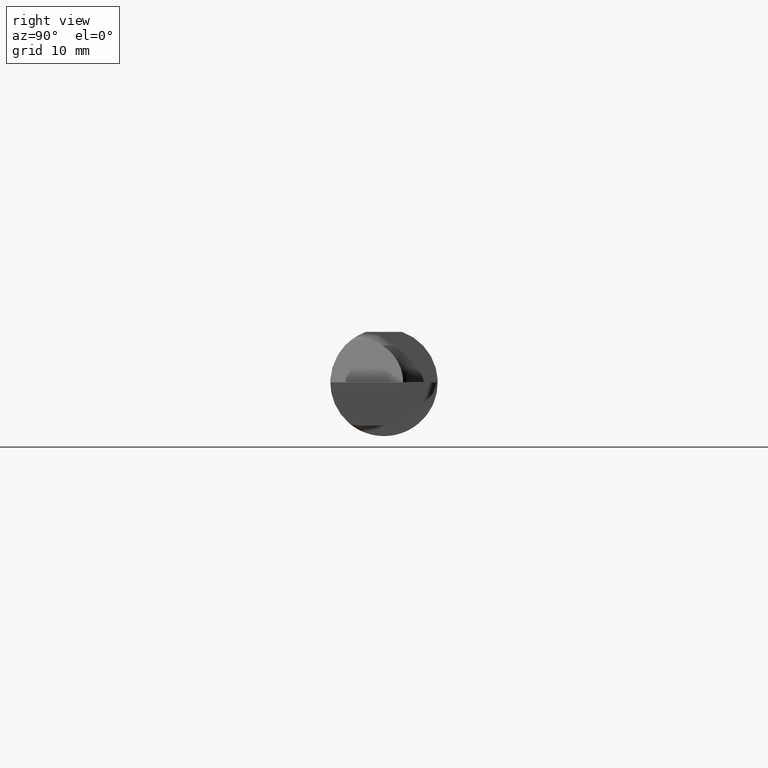
[diagram: clean part render]
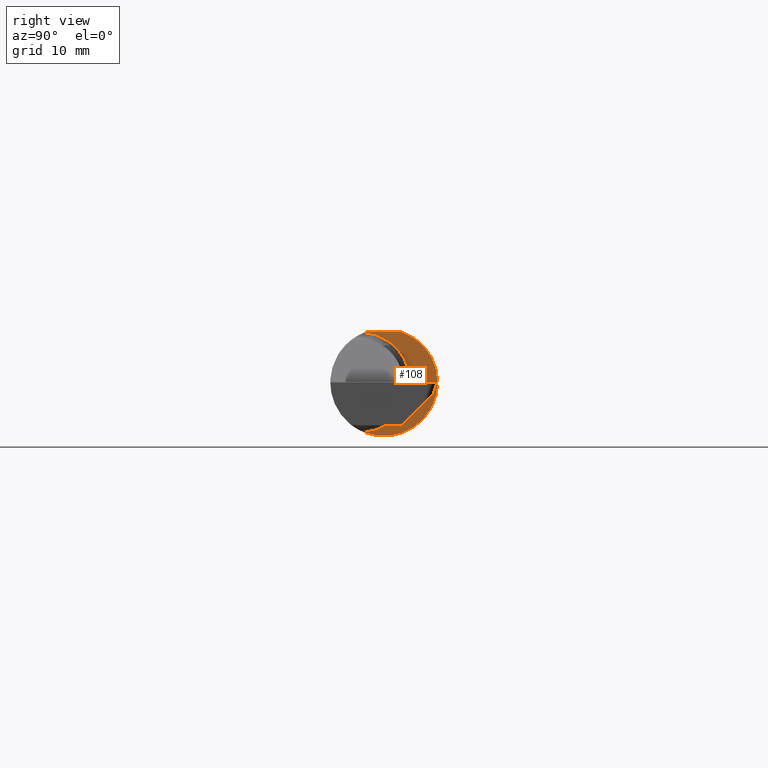
[diagram: same view with one face highlighted and labeled with its STEP entity id]
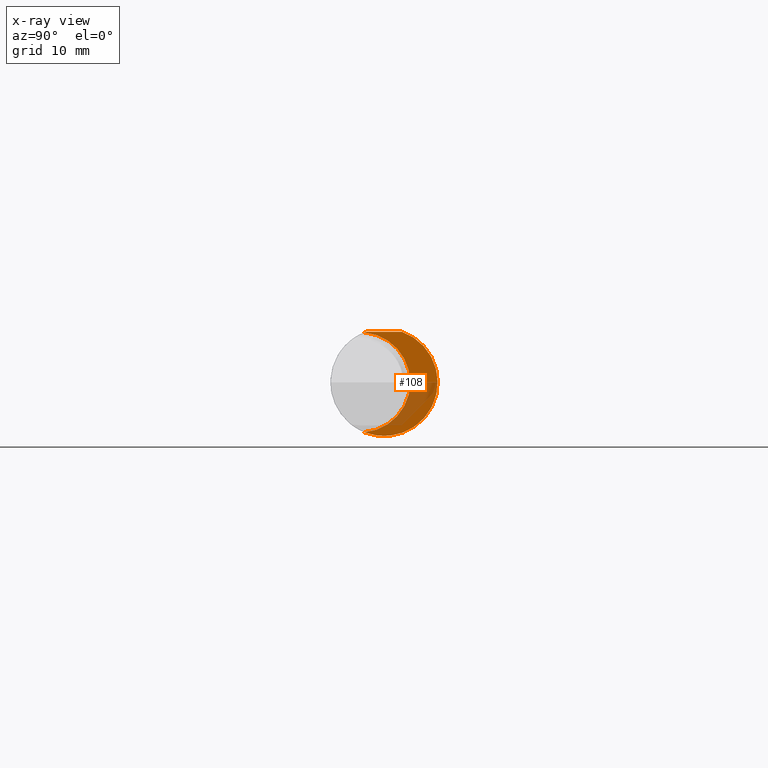
[diagram: x-ray of the same camera — body ghosted, the highlighted face saturated]
A machine part, right view. The second image highlights one B-rep face of the part: STEP entity #108.
The next image is the same camera in x-ray: the body ghosted, the highlighted face saturated — about 28% of this face is hidden behind the body in this view.
In plain terms, the highlighted planar face has unit normal (1, 0, 0).
Its self-contained STEP definition (entity closure, byte-faithful):
#16 = AXIS2_PLACEMENT_3D ( 'NONE', #31, #24, #188 ) ;
#24 = DIRECTION ( 'NONE',  ( 1.000000000000000000, 3.394713289407038742E-17, 0.000000000000000000 ) ) ;
#26 = EDGE_CURVE ( 'NONE', #470, #412, #154, .T. ) ;
#27 = VERTEX_POINT ( 'NONE', #487 ) ;
#31 = CARTESIAN_POINT ( 'NONE',  ( 1.949999999999999956, 0.000000000000000000, 0.000000000000000000 ) ) ;
#49 = DIRECTION ( 'NONE',  ( -3.394713289407038742E-17, 1.000000000000000000, 0.000000000000000000 ) ) ;
#61 = CARTESIAN_POINT ( 'NONE',  ( 1.949999999999999956, 0.1873499999999999055, 0.000000000000000000 ) ) ;
#106 = DIRECTION ( 'NONE',  ( 1.000000000000000000, 3.394713289407038742E-17, 0.000000000000000000 ) ) ;
#108 = ADVANCED_FACE ( 'NONE', ( #612 ), #275, .T. ) ;
#112 = DIRECTION ( 'NONE',  ( -3.394713289407038742E-17, 1.000000000000000000, 0.000000000000000000 ) ) ;
#143 = CIRCLE ( 'NONE', #466, 0.1749999999999999889 ) ;
#154 = LINE ( 'NONE', #704, #703 ) ;
#165 = EDGE_CURVE ( 'NONE', #27, #412, #626, .T. ) ;
#181 = CARTESIAN_POINT ( 'NONE',  ( 1.949999999999999956, -0.06851976604679065053, 0.1743704796142198643 ) ) ;
#188 = DIRECTION ( 'NONE',  ( 0.000000000000000000, 1.000000000000000000, 0.000000000000000000 ) ) ;
#202 = EDGE_CURVE ( 'NONE', #470, #237, #489, .T. ) ;
#221 = ORIENTED_EDGE ( 'NONE', *, *, #165, .T. ) ;
#231 = DIRECTION ( 'NONE',  ( -1.000000000000000000, -3.394713289407038742E-17, -0.000000000000000000 ) ) ;
#237 = VERTEX_POINT ( 'NONE', #181 ) ;
#275 = PLANE ( 'NONE',  #649 ) ;
#290 = EDGE_LOOP ( 'NONE', ( #221, #339, #698, #448 ) ) ;
#295 = AXIS2_PLACEMENT_3D ( 'NONE', #604, #106, #325 ) ;
#325 = DIRECTION ( 'NONE',  ( 0.000000000000000000, 1.000000000000000000, 0.000000000000000000 ) ) ;
#339 = ORIENTED_EDGE ( 'NONE', *, *, #26, .F. ) ;
#380 = EDGE_CURVE ( 'NONE', #237, #27, #143, .T. ) ;
#412 = VERTEX_POINT ( 'NONE', #457 ) ;
#448 = ORIENTED_EDGE ( 'NONE', *, *, #380, .T. ) ;
#450 = DIRECTION ( 'NONE',  ( 1.000000000000000000, 3.394713289407038742E-17, 0.000000000000000000 ) ) ;
#457 = CARTESIAN_POINT ( 'NONE',  ( 1.949999999999999956, 0.06325108694718235836, 0.1763499999999999235 ) ) ;
#466 = AXIS2_PLACEMENT_3D ( 'NONE', #467, #231, #690 ) ;
#467 = CARTESIAN_POINT ( 'NONE',  ( 1.949999999999999956, -0.08335000000000000742, 0.000000000000000000 ) ) ;
#470 = VERTEX_POINT ( 'NONE', #513 ) ;
#487 = CARTESIAN_POINT ( 'NONE',  ( 1.949999999999999956, -0.06851976604679065053, -0.1743704796142198643 ) ) ;
#489 = CIRCLE ( 'NONE', #16, 0.1873499999999999888 ) ;
#513 = CARTESIAN_POINT ( 'NONE',  ( 1.949999999999999956, -0.06325108694718283020, 0.1763499999999999235 ) ) ;
#604 = CARTESIAN_POINT ( 'NONE',  ( 1.949999999999999956, 0.000000000000000000, 0.000000000000000000 ) ) ;
#612 = FACE_OUTER_BOUND ( 'NONE', #290, .T. ) ;
#626 = CIRCLE ( 'NONE', #295, 0.1873499999999999888 ) ;
#649 = AXIS2_PLACEMENT_3D ( 'NONE', #61, #450, #112 ) ;
#690 = DIRECTION ( 'NONE',  ( 0.000000000000000000, -1.000000000000000000, 0.000000000000000000 ) ) ;
#698 = ORIENTED_EDGE ( 'NONE', *, *, #202, .T. ) ;
#703 = VECTOR ( 'NONE', #49, 39.37007874015748143 ) ;
#704 = CARTESIAN_POINT ( 'NONE',  ( 1.949999999999999956, 0.1873499999999998222, 0.1763499999999999235 ) ) ;